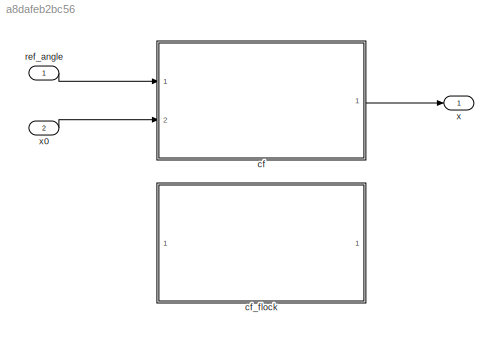
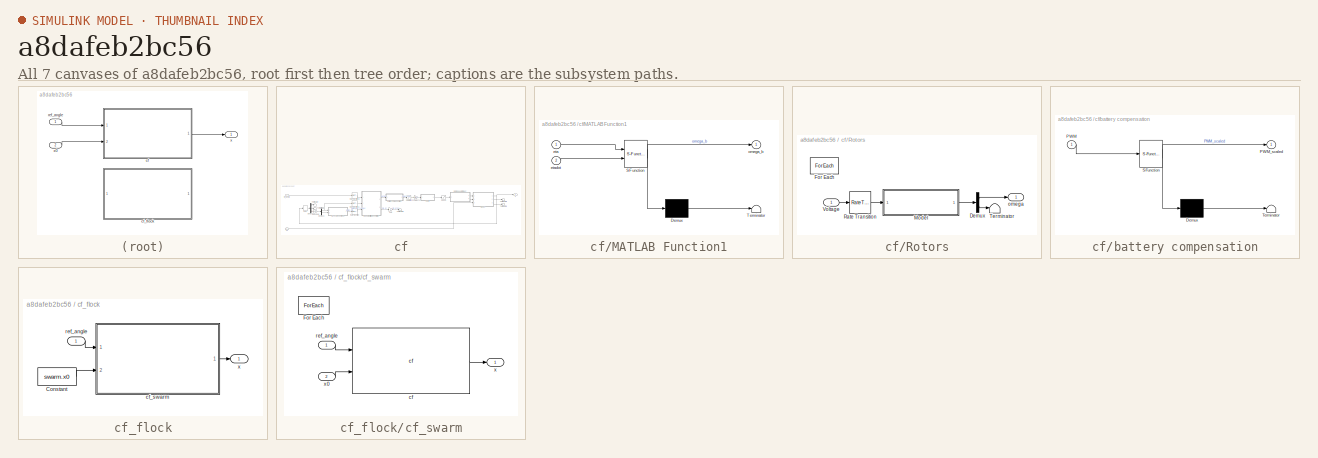
[diagram: thumbnail index - all 7 canvases of the model, root first then tree order]
MODEL slx_a8dafeb2bc56
KIND library
CONFIG AbsTol = auto
CONFIG EnableMultiTasking = off
CONFIG FixedStep = auto
CONFIG MaxStep = auto
CONFIG MinStep = auto
CONFIG RelTol = 1e-3
CONFIG SampleTimeConstraint = Unconstrained
CONFIG Solver = VariableStepAuto
CONFIG SolverName = VariableStepAuto
CONFIG StartTime = 0.0
CONFIG StopTime = 10.0
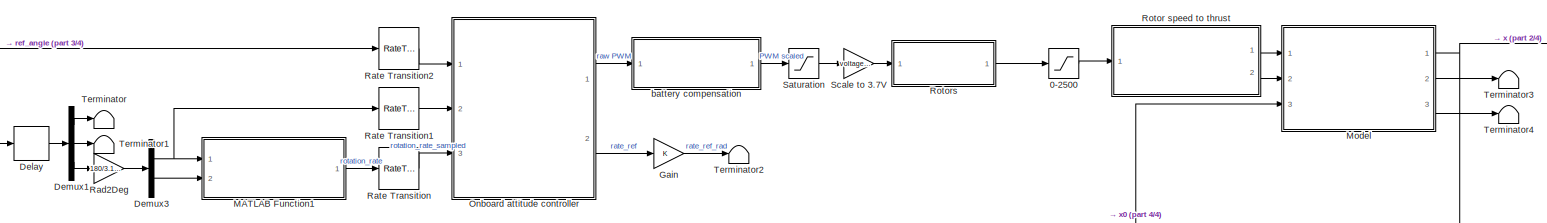
[diagram: cf - part 1/4, full width, middle band]
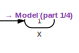
[diagram: cf - part 2/4, top right region]
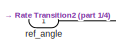
[diagram: cf - part 3/4, top left region]
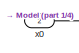
[diagram: cf - part 4/4, bottom left region]
BLOCK [SubSystem] cf
  Ports = [2, 1]
  RequestExecContextInheritance = off
BLOCK [Saturate] cf/0-2500
  InputPortMap = u0
  LowerLimit = inner_minlim
  Ports = [1, 1]
  UpperLimit = inner_maxlim
BLOCK [Delay] cf/Delay
  DelayLength = 1
  InitialCondition = 0
  InputPortMap = u0
  Ports = [1, 1]
BLOCK [Demux] cf/Demux1
  DisplayOption = bar
  Outputs = [3 3 6]
  Ports = [1, 3]
BLOCK [Demux] cf/Demux3
  DisplayOption = bar
  Outputs = 2
  Ports = [1, 2]
BLOCK [Gain] cf/Gain
  OutDataTypeStr = Inherit: Inherit via internal rule
  ParamDataTypeStr = Inherit: Inherit via internal rule
  SaturateOnIntegerOverflow = off
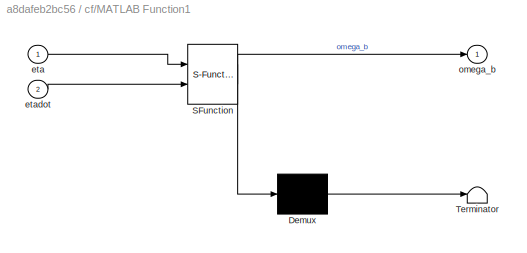
BLOCK [SubSystem] cf/MATLAB Function1
  ErrorFcn = Stateflow.Translate.translate
  PermitHierarchicalResolution = ExplicitOnly
  Ports = [2, 1]
  RequestExecContextInheritance = off
  SFBlockType = MATLAB Function
  TreatAsAtomicUnit = on
BLOCK [Demux] cf/MATLAB Function1/ Demux 
  Outputs = 1
  Ports = [1, 1]
BLOCK [S-Function] cf/MATLAB Function1/ SFunction 
  EnableBusSupport = off
  FunctionName = sf_sfun
  PortCounts = [2 2]
  Ports = [2, 2]
  SFcnIsStateOwnerBlock = off
  SFunctionDeploymentMode = off
  Tag = Stateflow S-Function cf_lib 1
BLOCK [Terminator] cf/MATLAB Function1/ Terminator 
BLOCK [Inport] cf/MATLAB Function1/eta
  IconDisplay = Port number
BLOCK [Inport] cf/MATLAB Function1/etadot
  IconDisplay = Port number
  Port = 2
BLOCK [Outport] cf/MATLAB Function1/omega_b
  IconDisplay = Port number
BLOCK [ModelReference] cf/Model
  ModelNameDialog = quadcopter_model_c_Euler.mdl
  ModelReferenceVersion = 1.186
  Ports = [3, 3]
BLOCK [ModelReference] cf/Onboard attitude controller
  ModelNameDialog = onboard_control.mdl
  ModelReferenceVersion = 1.123
  Ports = [3, 2]
BLOCK [Gain] cf/Rad2Deg
  Gain = 180/3.1415
  OutDataTypeStr = Inherit: Inherit via internal rule
  ParamDataTypeStr = Inherit: Inherit via internal rule
  SaturateOnIntegerOverflow = off
BLOCK [RateTransition] cf/Rate Transition
  OutPortSampleTime = inner_rate_h
BLOCK [RateTransition] cf/Rate Transition1
  OutPortSampleTime = inner_rate_h
BLOCK [RateTransition] cf/Rate Transition2
  OutPortSampleTime = inner_rate_h
BLOCK [ModelReference] cf/Rotor speed to thrust
  ModelNameDialog = omega2thrust_cross.mdl
  ModelReferenceVersion = 1.15
  Ports = [1, 2]
BLOCK [SubSystem] cf/Rotors
  Ports = [1, 1]
  RequestExecContextInheritance = off
  TreatAsAtomicUnit = on
BLOCK [Demux] cf/Rotors/Demux
  DisplayOption = bar
  Outputs = 2
  Ports = [1, 2]
BLOCK [ForEach] cf/Rotors/For Each
  DisableCoverage = on
  IndexMode = One-based
  Ports = []
BLOCK [ModelReference] cf/Rotors/Model
  ModelNameDialog = rotor_model_d
  ModelReferenceVersion = 1.31
  Ports = [1, 1]
BLOCK [RateTransition] cf/Rotors/Rate Transition
  OutPortSampleTime = continuous_h
BLOCK [Terminator] cf/Rotors/Terminator
BLOCK [Inport] cf/Rotors/Voltage
  IconDisplay = Port number
  Partition = on
  PartitionDimension = 1
  PartitionOffset = 0
  PartitionWidth = 1
BLOCK [Outport] cf/Rotors/omega
  ConcatenationDimension = 1
  IconDisplay = Port number
BLOCK [Saturate] cf/Saturation
  InputPortMap = u0
  LowerLimit = inner_thrust_min
  Ports = [1, 1]
  UpperLimit = 1
BLOCK [Gain] cf/Scale to 3.7V
  Gain = voltage_battery
  OutDataTypeStr = Inherit: Inherit via internal rule
  ParamDataTypeStr = Inherit: Inherit via internal rule
  SaturateOnIntegerOverflow = off
BLOCK [Terminator] cf/Terminator
BLOCK [Terminator] cf/Terminator1
BLOCK [Terminator] cf/Terminator2
BLOCK [Terminator] cf/Terminator3
BLOCK [Terminator] cf/Terminator4
BLOCK [SubSystem] cf/battery compensation
  ErrorFcn = Stateflow.Translate.translate
  PermitHierarchicalResolution = ExplicitOnly
  Ports = [1, 1]
  RequestExecContextInheritance = off
  SFBlockType = MATLAB Function
  TreatAsAtomicUnit = on
BLOCK [Demux] cf/battery compensation/ Demux 
  Outputs = 1
  Ports = [1, 1]
BLOCK [S-Function] cf/battery compensation/ SFunction 
  EnableBusSupport = off
  FunctionName = sf_sfun
  Parameters = voltage_battery
  PortCounts = [1 2]
  Ports = [1, 2]
  SFcnIsStateOwnerBlock = off
  SFunctionDeploymentMode = off
  Tag = Stateflow S-Function cf_lib 2
BLOCK [Terminator] cf/battery compensation/ Terminator 
BLOCK [Inport] cf/battery compensation/PWM
  IconDisplay = Port number
BLOCK [Outport] cf/battery compensation/PWM_scaled
  IconDisplay = Port number
BLOCK [Inport] cf/ref_angle
  IconDisplay = Port number
  PortDimensions = 4
BLOCK [Outport] cf/x
  IconDisplay = Port number
BLOCK [Inport] cf/x0
  IconDisplay = Port number
  Port = 2
BLOCK [SubSystem] cf_flock
  Ports = [1, 1]
  RequestExecContextInheritance = off
BLOCK [Constant] cf_flock/Constant
  Value = swarm.x0
BLOCK [SubSystem] cf_flock/cf_swarm
  Ports = [2, 1]
  RequestExecContextInheritance = off
  TreatAsAtomicUnit = on
BLOCK [ForEach] cf_flock/cf_swarm/For Each
  DisableCoverage = on
  IndexMode = One-based
  Ports = []
BLOCK [Reference] cf_flock/cf_swarm/cf  REF=$bdroot/cf
  Ports = [2, 1]
  SourceBlock = $bdroot/cf
  SourceType = SubSystem
BLOCK [Inport] cf_flock/cf_swarm/ref_angle
  IconDisplay = Port number
  Partition = on
  PartitionDimension = 2
  PartitionOffset = 0
  PartitionWidth = 1
BLOCK [Outport] cf_flock/cf_swarm/x
  ConcatenationDimension = 2
  IconDisplay = Port number
BLOCK [Inport] cf_flock/cf_swarm/x0
  IconDisplay = Port number
  Partition = on
  PartitionDimension = 2
  PartitionOffset = 0
  PartitionWidth = 1
  Port = 2
BLOCK [Inport] cf_flock/ref_angle
  IconDisplay = Port number
BLOCK [Outport] cf_flock/x
  IconDisplay = Port number
BLOCK [Inport] ref_angle
  IconDisplay = Port number
  PortDimensions = 4
BLOCK [Outport] x
  IconDisplay = Port number
BLOCK [Inport] x0
  IconDisplay = Port number
  Port = 2
LINE cf/0-2500:1 -> cf/Rotor speed to thrust:1
LINE cf/Delay:1 -> cf/Demux1:1
LINE cf/Demux1:1 -> cf/Terminator:1
LINE cf/Demux1:2 -> cf/Terminator1:1
LINE cf/Demux1:3 -> cf/Rad2Deg:1
NET cf/Demux3:1 -> cf/MATLAB Function1:1, cf/Rate Transition1:1
LINE cf/Demux3:2 -> cf/MATLAB Function1:2
LINE cf/Gain:1 -> cf/Terminator2:1
LINE cf/MATLAB Function1:1 -> cf/Rate Transition:1
NET cf/Model:1 -> cf/Delay:1, cf/x:1
LINE cf/Model:2 -> cf/Terminator3:1
LINE cf/Model:3 -> cf/Terminator4:1
LINE cf/Onboard attitude controller:1 -> cf/battery compensation:1
LINE cf/Onboard attitude controller:2 -> cf/Gain:1
LINE cf/Rad2Deg:1 -> cf/Demux3:1
LINE cf/Rate Transition1:1 -> cf/Onboard attitude controller:2
LINE cf/Rate Transition2:1 -> cf/Onboard attitude controller:1
LINE cf/Rate Transition:1 -> cf/Onboard attitude controller:3
LINE cf/Rotor speed to thrust:1 -> cf/Model:1
LINE cf/Rotor speed to thrust:2 -> cf/Model:2
LINE cf/Rotors/Demux:1 -> cf/Rotors/omega:1
LINE cf/Rotors/Demux:2 -> cf/Rotors/Terminator:1
LINE cf/Rotors/Model:1 -> cf/Rotors/Demux:1
LINE cf/Rotors/Rate Transition:1 -> cf/Rotors/Model:1
LINE cf/Rotors/Voltage:1 -> cf/Rotors/Rate Transition:1
LINE cf/Rotors:1 -> cf/0-2500:1
LINE cf/Saturation:1 -> cf/Scale to 3.7V:1
LINE cf/Scale to 3.7V:1 -> cf/Rotors:1
LINE cf/battery compensation:1 -> cf/Saturation:1
LINE cf/ref_angle:1 -> cf/Rate Transition2:1
LINE cf/x0:1 -> cf/Model:3
LINE cf:1 -> x:1
LINE cf_flock/Constant:1 -> cf_flock/cf_swarm:2
LINE cf_flock/cf_swarm/cf:1 -> cf_flock/cf_swarm/x:1
LINE cf_flock/cf_swarm/ref_angle:1 -> cf_flock/cf_swarm/cf:1
LINE cf_flock/cf_swarm/x0:1 -> cf_flock/cf_swarm/cf:2
LINE cf_flock/cf_swarm:1 -> cf_flock/x:1
LINE cf_flock/ref_angle:1 -> cf_flock/cf_swarm:1
LINE ref_angle:1 -> cf:1
LINE x0:1 -> cf:2
note: NET lines group one-source signal fan-out (src -> all destinations, sorted); 1:1 wires keep LINE
CHART cf/MATLAB Function1 states=1 transitions=1
  STATE_LABEL 'eML_blk_kernel()'
  STATE_LABEL 'SCRIPT:\nfunction omega_b = etadot2omega_b(eta, etadot)\n    % roll(phi) pitch(theta) yaw(psi)\n    s_phi = sind(eta(1));\n    c_phi = cosd(eta(1));\n    s_theta = sind(eta(2));\n    c_theta = cosd(eta(2));\n    Weta = [1, 0, -s_theta;\n        0, c_phi, c_theta*s_phi;\n        0, -s_phi, c_theta*c_phi];\n    omega_b = Weta*etadot;\nend\n'
CHART cf/battery compensation states=1 transitions=1
  STATE_LABEL 'eML_blk_kernel()'
  STATE_LABEL 'SCRIPT:\nfunction PWM_scaled = bat_comp(PWM, voltage_battery)\n\nc = numel(PWM);\nPWM = PWM.*60; % Map to 60g max thrust\nPWM = -0.0006239 .* PWM.^2 + 0.088 .* PWM; % Remap to volts\nPWM = PWM./voltage_battery; % Get percentage\n% Check if over 100%\nfor i = 1:c\n    if PWM(i) > 1\n        PWM(i) = 1;\n    end\nend\n\n% D = D.*65536; % Rescale to uint16\nPWM_scaled = PWM;\n'
